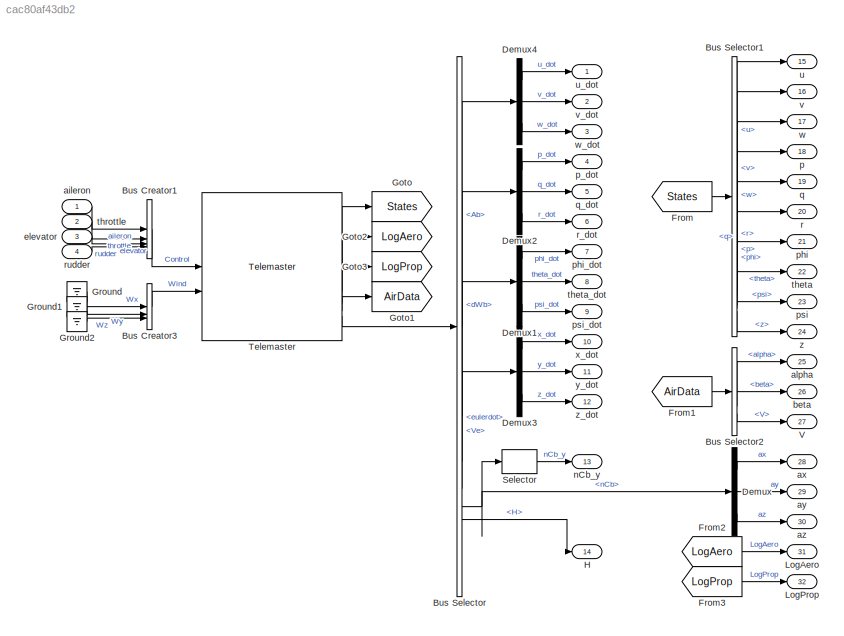
MODEL slx_cac80af43db2
KIND model
CONFIG AbsTol = auto
CONFIG EnableMultiTasking = off
CONFIG FixedStep = dt
CONFIG MaxStep = auto
CONFIG MinStep = auto
CONFIG RelTol = 1e-3
CONFIG SampleTimeConstraint = Unconstrained
CONFIG SolverName = ode4
CONFIG StartTime = 0.0
CONFIG StopTime = t(end)
BLOCK [BusCreator] Bus Creator1
  DisplayOption = bar
  InheritFromInputs = on
  Inputs = 4
BLOCK [BusCreator] Bus Creator3
  DisplayOption = bar
  InheritFromInputs = on
  Inputs = 3
BLOCK [BusSelector] Bus Selector
  OutputSignals = Ab,dWb,eulerdot,Ve,nCb,H
BLOCK [BusSelector] Bus Selector1
  OutputSignals = u,v,w,p,q,r,phi,theta,psi,z
BLOCK [BusSelector] Bus Selector2
  OutputSignals = alpha,beta,V
BLOCK [Demux] Demux
  Outputs = 3
BLOCK [Demux] Demux1
  Outputs = 3
BLOCK [Demux] Demux2
  Outputs = 3
BLOCK [Demux] Demux3
  Outputs = 3
BLOCK [Demux] Demux4
  Outputs = 3
BLOCK [From] From
  GotoTag = States
BLOCK [From] From1
  GotoTag = AirData
BLOCK [From] From2
  GotoTag = LogAero
BLOCK [From] From3
  GotoTag = LogProp
BLOCK [Goto] Goto
  GotoTag = States
BLOCK [Goto] Goto1
  GotoTag = AirData
BLOCK [Goto] Goto2
  GotoTag = LogAero
BLOCK [Goto] Goto3
  GotoTag = LogProp
BLOCK [Ground] Ground
BLOCK [Ground] Ground1
BLOCK [Ground] Ground2
BLOCK [Outport] H
  Port = 14
  SignalName = H
BLOCK [Outport] LogAero
  Port = 31
BLOCK [Outport] LogProp
  Port = 32
BLOCK [Selector] Selector
  IndexOptions = Index vector (dialog)
  Indices = 2
  InputPortWidth = 3
  OutputSizes = 1
BLOCK [Reference] Telemaster  REF=Telemaster_Lib/Telemaster
  SourceBlock = Telemaster_Lib/Telemaster
  SourceType = SubSystem
BLOCK [Outport] V
  Port = 27
BLOCK [Inport] aileron
  NameLocation = left
  Unit = deg
BLOCK [Outport] alpha
  Port = 25
BLOCK [Outport] ax
  Port = 28
BLOCK [Outport] ay
  Port = 29
BLOCK [Outport] az
  Port = 30
BLOCK [Outport] beta
  Port = 26
BLOCK [Inport] elevator
  NameLocation = left
  Port = 3
  Unit = deg
BLOCK [Outport] nCb_y
  Port = 13
  SignalName = nCb_y
BLOCK [Outport] p
  Port = 18
BLOCK [Outport] p_dot
  Port = 4
  SignalName = p_dot
BLOCK [Outport] phi
  Port = 21
BLOCK [Outport] phi_dot
  Port = 7
  SignalName = phi_dot
BLOCK [Outport] psi
  Port = 23
BLOCK [Outport] psi_dot
  Port = 9
  SignalName = psi_dot
BLOCK [Outport] q
  Port = 19
BLOCK [Outport] q_dot
  Port = 5
  SignalName = q_dot
BLOCK [Outport] r
  Port = 20
BLOCK [Outport] r_dot
  Port = 6
  SignalName = r_dot
BLOCK [Inport] rudder
  NameLocation = left
  Port = 4
  Unit = deg
BLOCK [Outport] theta
  Port = 22
BLOCK [Outport] theta_dot
  Port = 8
  SignalName = theta_dot
BLOCK [Inport] throttle
  NameLocation = left
  Port = 2
  Unit = %
BLOCK [Outport] u
  Port = 15
BLOCK [Outport] u_dot
  SignalName = u_dot
  Unit = m/s^2
BLOCK [Outport] v
  Port = 16
BLOCK [Outport] v_dot
  Port = 2
  SignalName = v_dot
  Unit = m/s^2
BLOCK [Outport] w
  Port = 17
BLOCK [Outport] w_dot
  Port = 3
  SignalName = w_dot
  Unit = m/s^2
BLOCK [Outport] x_dot
  Port = 10
  SignalName = x_dot
BLOCK [Outport] y_dot
  Port = 11
  SignalName = y_dot
BLOCK [Outport] z
  Port = 24
BLOCK [Outport] z_dot
  Port = 12
  SignalName = z_dot
LINE Bus Creator1:1 -> Telemaster:1
LINE Bus Creator3:1 -> Telemaster:2
LINE Bus Selector1:1 -> u:1
LINE Bus Selector1:10 -> z:1
LINE Bus Selector1:2 -> v:1
LINE Bus Selector1:3 -> w:1
LINE Bus Selector1:4 -> p:1
LINE Bus Selector1:5 -> q:1
LINE Bus Selector1:6 -> r:1
LINE Bus Selector1:7 -> phi:1
LINE Bus Selector1:8 -> theta:1
LINE Bus Selector1:9 -> psi:1
LINE Bus Selector2:1 -> alpha:1
LINE Bus Selector2:2 -> beta:1
LINE Bus Selector2:3 -> V:1
LINE Bus Selector:1 -> Demux4:1
LINE Bus Selector:2 -> Demux2:1
LINE Bus Selector:3 -> Demux1:1
LINE Bus Selector:4 -> Demux3:1
NET Bus Selector:5 -> Demux:1, Selector:1
LINE Bus Selector:6 -> H:1
LINE Demux1:1 -> phi_dot:1
LINE Demux1:2 -> theta_dot:1
LINE Demux1:3 -> psi_dot:1
LINE Demux2:1 -> p_dot:1
LINE Demux2:2 -> q_dot:1
LINE Demux2:3 -> r_dot:1
LINE Demux3:1 -> x_dot:1
LINE Demux3:2 -> y_dot:1
LINE Demux3:3 -> z_dot:1
LINE Demux4:1 -> u_dot:1
LINE Demux4:2 -> v_dot:1
LINE Demux4:3 -> w_dot:1
LINE Demux:1 -> ax:1
LINE Demux:2 -> ay:1
LINE Demux:3 -> az:1
LINE From1:1 -> Bus Selector2:1
LINE From2:1 -> LogAero:1
LINE From3:1 -> LogProp:1
LINE From:1 -> Bus Selector1:1
LINE Ground1:1 -> Bus Creator3:2
LINE Ground2:1 -> Bus Creator3:3
LINE Ground:1 -> Bus Creator3:1
LINE Selector:1 -> nCb_y:1
LINE Telemaster:1 -> Goto:1
LINE Telemaster:2 -> Goto2:1
LINE Telemaster:3 -> Goto3:1
LINE Telemaster:4 -> Goto1:1
LINE Telemaster:5 -> Bus Selector:1
LINE aileron:1 -> Bus Creator1:1
LINE elevator:1 -> Bus Creator1:3
LINE rudder:1 -> Bus Creator1:4
LINE throttle:1 -> Bus Creator1:2
note: NET lines group one-source signal fan-out (src -> all destinations, sorted); 1:1 wires keep LINE
